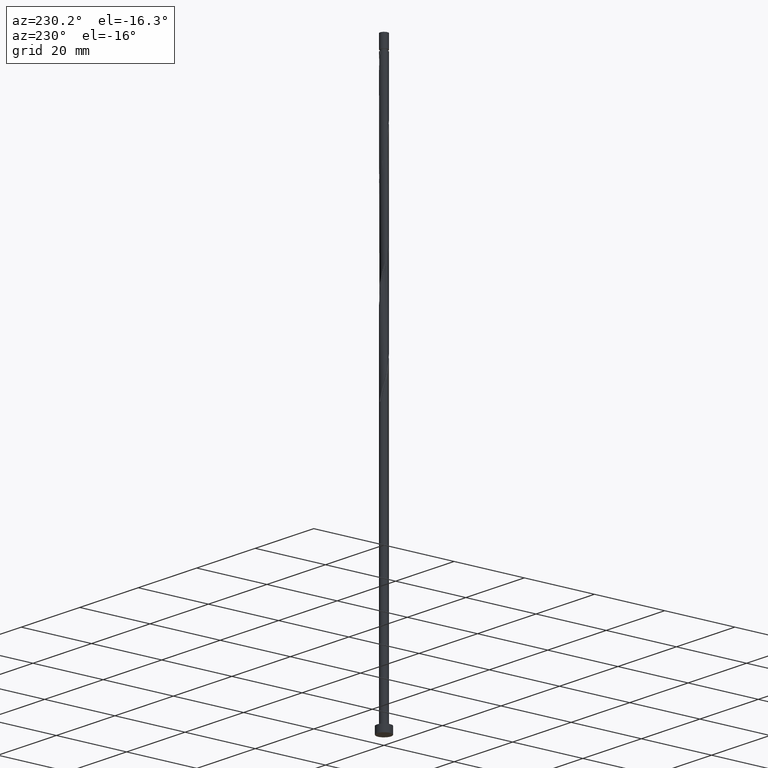
[diagram: clean part render]
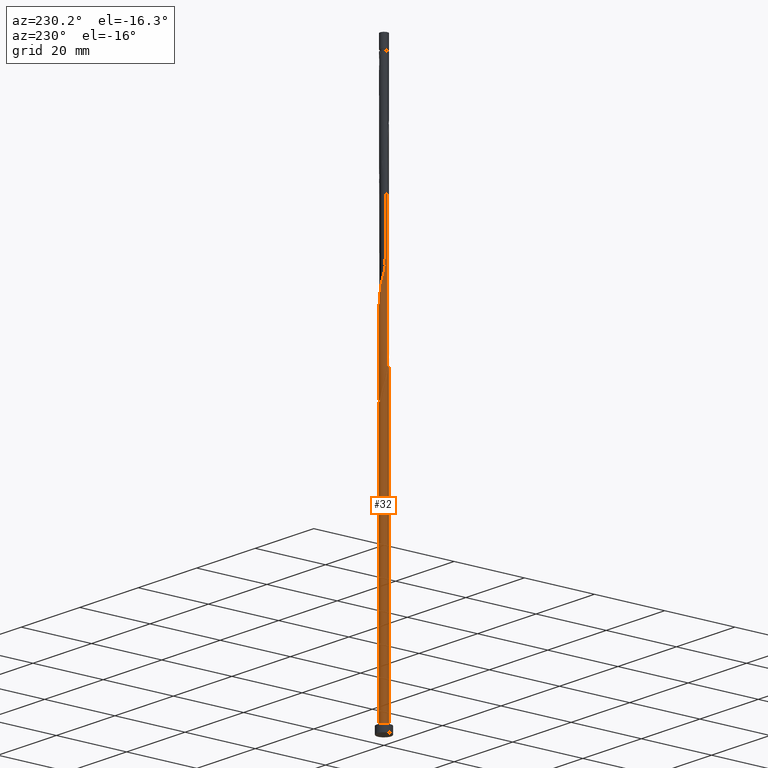
[diagram: same view with one face highlighted and labeled with its STEP entity id]
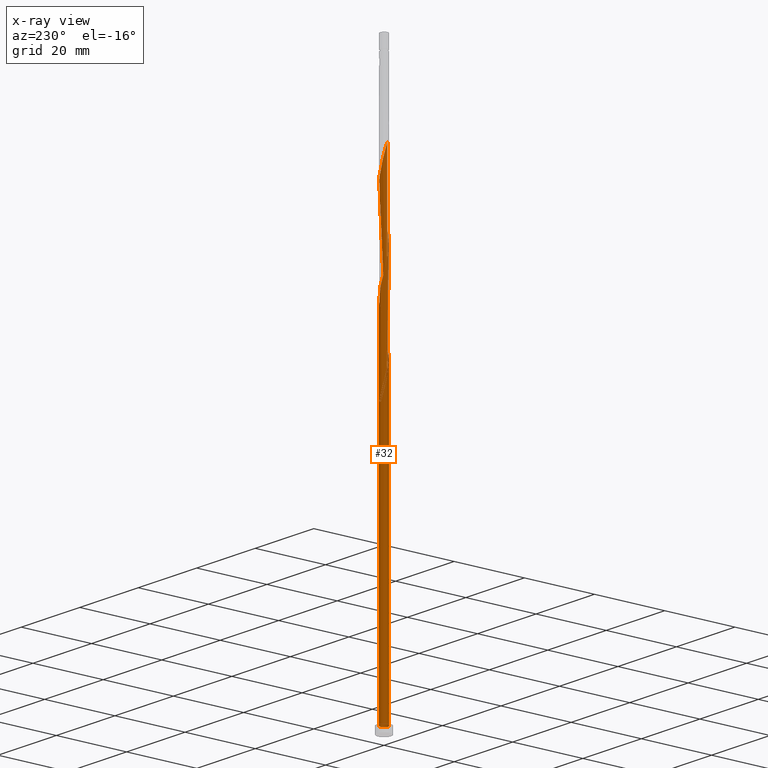
[diagram: x-ray of the same camera — body ghosted, the highlighted face saturated]
A machine part, auxiliary view. The second image highlights one B-rep face of the part: STEP entity #32.
The next image is the same camera in x-ray: the body ghosted, the highlighted face saturated — about 0% of this face is hidden behind the body in this view.
In plain terms, the highlighted cylindrical surface (bore or boss wall) has radius 1.1 mm, axis along (-0, -0, -1).
Its self-contained STEP definition (entity closure, byte-faithful):
#13 = CARTESIAN_POINT ( 'NONE',  ( -0.8896500927852528662, -0.6469333137249893007, 84.27807455420632721 ) ) ;
#27 = CARTESIAN_POINT ( 'NONE',  ( 0.7669588744666251401, -0.7885265276938321355, 118.2174684936002791 ) ) ;
#32 = ADVANCED_FACE ( 'NONE', ( #833 ), #443, .T. ) ;
#35 = CARTESIAN_POINT ( 'NONE',  ( -1.107274360013432490, 0.09464064150255063756, 107.9144381905699532 ) ) ;
#39 = EDGE_CURVE ( 'NONE', #769, #81, #824, .T. ) ;
#44 = CARTESIAN_POINT ( 'NONE',  ( -1.098179839110718259, -0.06325378226446287666, 108.5204987966305765 ) ) ;
#51 = CARTESIAN_POINT ( 'NONE',  ( 0.8803318733882241620, -0.6782544891587158897, 92.15686243299418834 ) ) ;
#57 = CARTESIAN_POINT ( 'NONE',  ( 0.5137380563175319992, -0.9726629475265770042, 90.33868061481238954 ) ) ;
#77 = EDGE_CURVE ( 'NONE', #81, #672, #650, .T. ) ;
#81 = VERTEX_POINT ( 'NONE', #338 ) ;
#86 =( BOUNDED_CURVE ( )  B_SPLINE_CURVE ( 2, ( #370, #952, #1429, #844, #1306, #1082, #13, #972, #256, #734, #1459, #411, #522, #1479, #1012, #1106, #57, #878, #415, #51, #986, #299, #164, #158, #635, #528, #508, #999, #1451, #865, #1331, #890, #1112, #873, #1221, #630, #1355, #292, #772, #767, #753, #1238, #1245, #885, #1226, #35, #44, #393, #1349, #400, #1343, #272, #624, #514, #1465, #176, #404, #1099, #748, #646, #995, #1336, #27, #279, #284, #760, #1231, #172, #534, #641, #1120, #1005, #1125, #1473, #1136, #1018, #662, #367, #193, #201, #794, #1294, #1129, #669, #901, #1362, #1426, #776, #545, #956, #124 ),
 .UNSPECIFIED., .F., .T. ) 
 B_SPLINE_CURVE_WITH_KNOTS ( ( 3, 2, 2, 2, 2, 2, 2, 2, 2, 2, 2, 2, 2, 2, 2, 2, 2, 2, 2, 2, 2, 2, 2, 2, 2, 2, 2, 2, 2, 2, 2, 2, 2, 2, 2, 2, 2, 2, 2, 2, 2, 2, 2, 2, 2, 3 ),
 ( 0.05452521624175153681, 0.05681818181818176772, 0.06818181818181823228, 0.07954545454545458583, 0.09090909090909093937, 0.1022727272727272929, 0.1136363636363636465, 0.1250000000000000000, 0.1363636363636363535, 0.1477272727272727071, 0.1590909090909090606, 0.1704545454545454142, 0.1818181818181817677, 0.1931818181818182323, 0.2045454545454545858, 0.2159090909090909394, 0.2272727272727272929, 0.2386363636363636465, 0.2500000000000000000, 0.2613636363636363535, 0.2727272727272727071, 0.2840909090909090606, 0.2954545454545454142, 0.3068181818181817677, 0.3181818181818182323, 0.3295454545454545858, 0.3409090909090909394, 0.3522727272727272929, 0.3636363636363636465, 0.3750000000000000000, 0.3863636363636363535, 0.3977272727272727071, 0.4090909090909090606, 0.4204545454545454142, 0.4318181818181817677, 0.4431818181818182323, 0.4545454545454545858, 0.4659090909090909394, 0.4772727272727272929, 0.4886363636363636465, 0.5000000000000000000, 0.5113636363636363535, 0.5227272727272727071, 0.5340909090909091717, 0.5454545454545454142, 0.5545252162417509956 ),
 .UNSPECIFIED. ) 
 CURVE ( )  GEOMETRIC_REPRESENTATION_ITEM ( )  RATIONAL_B_SPLINE_CURVE ( ( 0.9061101570135821071, 0.9072237824201642153, 0.9090909090909415902, 0.8998376744372437175, 0.9090909090909415902, 0.8998376744372437175, 0.9090909090909415902, 0.8998376744372437175, 0.9090909090909415902, 0.8998376744372437175, 0.9090909090909415902, 0.8998376744372437175, 0.9090909090909415902, 0.8998376744372437175, 0.9090909090909415902, 0.8998376744372437175, 0.9090909090909415902, 0.8998376744372437175, 0.9090909090909415902, 0.8998376744372437175, 0.9090909090909415902, 0.8998376744372437175, 0.9090909090909415902, 0.8998376744372437175, 0.9090909090909415902, 0.8998376744372437175, 0.9090909090909415902, 0.8998376744372437175, 0.9090909090909415902, 0.8998376744372437175, 0.9090909090909415902, 0.8998376744372437175, 0.9090909090909415902, 0.8998376744372437175, 0.9090909090909415902, 0.8998376744372437175, 0.9090909090909415902, 0.8998376744372437175, 0.9090909090909415902, 0.8998376744372437175, 0.9090909090909415902, 0.8998376744372437175, 0.9090909090909415902, 0.8998376744372437175, 0.9090909090909415902, 0.8998376744372437175, 0.9090909090909415902, 0.8998376744372437175, 0.9090909090909415902, 0.8998376744372437175, 0.9090909090909415902, 0.8998376744372437175, 0.9090909090909415902, 0.8998376744372437175, 0.9090909090909415902, 0.8998376744372437175, 0.9090909090909415902, 0.8998376744372437175, 0.9090909090909415902, 0.8998376744372437175, 0.9090909090909415902, 0.8998376744372437175, 0.9090909090909415902, 0.8998376744372437175, 0.9090909090909415902, 0.8998376744372437175, 0.9090909090909415902, 0.8998376744372437175, 0.9090909090909415902, 0.8998376744372437175, 0.9090909090909415902, 0.8998376744372437175, 0.9090909090909415902, 0.8998376744372437175, 0.9090909090909415902, 0.8998376744372437175, 0.9090909090909415902, 0.8998376744372437175, 0.9090909090909415902, 0.8998376744372437175, 0.9090909090909415902, 0.8998376744372437175, 0.9090909090909415902, 0.8998376744372437175, 0.9090909090909415902, 0.8998376744372437175, 0.9090909090909415902, 0.8998376744372437175, 0.9090909090909415902, 0.9017048011080215364, 0.9061101570135814409 ) ) 
 REPRESENTATION_ITEM ( '' )  );
#100 = DIRECTION ( 'NONE',  ( 0.000000000000000000, 0.000000000000000000, 1.000000000000000000 ) ) ;
#103 = CARTESIAN_POINT ( 'NONE',  ( -0.8803318733882241620, 0.6782544891587156677, 78.82352909966088816 ) ) ;
#111 = EDGE_CURVE ( 'NONE', #735, #769, #1368, .T. ) ;
#115 = CARTESIAN_POINT ( 'NONE',  ( -0.5137380563175322212, 0.9726629475265764491, 77.00534728147904673 ) ) ;
#123 = VECTOR ( 'NONE', #1207, 1000.000000000000000 ) ;
#124 = CARTESIAN_POINT ( 'NONE',  ( -1.100000000000001199, 1.084369501003464350E-16, 134.9437715900569401 ) ) ;
#128 = CARTESIAN_POINT ( 'NONE',  ( -1.100000000000001199, 0.03165307917620435729, 83.18724921060717747 ) ) ;
#144 = CARTESIAN_POINT ( 'NONE',  ( -1.100000000000001199, -1.488203659997859560E-15, 83.30934721532540266 ) ) ;
#149 = AXIS2_PLACEMENT_3D ( 'NONE', #1006, #1356, #647 ) ;
#158 = CARTESIAN_POINT ( 'NONE',  ( 1.107274360013432490, -0.09464064150255058205, 94.58110485723662464 ) ) ;
#164 = CARTESIAN_POINT ( 'NONE',  ( 1.071516489199092259, -0.2487014543070791284, 93.97504425117602977 ) ) ;
#172 = CARTESIAN_POINT ( 'NONE',  ( 1.107274360013432490, -0.09464064150255058205, 121.2477715239032818 ) ) ;
#176 = CARTESIAN_POINT ( 'NONE',  ( -0.2512589077020578876, -1.082535135996767650, 113.9750442511760014 ) ) ;
#193 = CARTESIAN_POINT ( 'NONE',  ( 0.09367733623259111297, 1.096003903586282746, 127.9144381905699674 ) ) ;
#201 = CARTESIAN_POINT ( 'NONE',  ( -0.06390423523687575880, 1.109472671175798286, 128.5204987966305623 ) ) ;
#204 = DIRECTION ( 'NONE',  ( 1.000000000000000000, 0.000000000000000000, 0.000000000000000000 ) ) ;
#209 = CARTESIAN_POINT ( 'NONE',  ( 0.000000000000000000, 0.000000000000000000, 2.000000000000000000 ) ) ;
#223 = CARTESIAN_POINT ( 'NONE',  ( -0.2188972361634571318, 1.078000000000001402, 75.79322606935782858 ) ) ;
#236 = ORIENTED_EDGE ( 'NONE', *, *, #1183, .T. ) ;
#238 = CARTESIAN_POINT ( 'NONE',  ( -0.5460665482332321963, 0.9678970421836270432, 78.82352909966088816 ) ) ;
#256 = CARTESIAN_POINT ( 'NONE',  ( -0.6713508364212954493, -0.8713713642508746915, 85.49019576632754536 ) ) ;
#261 =( BOUNDED_CURVE ( )  B_SPLINE_CURVE ( 2, ( #144, #128, #1068, #1411, #266, #500, #352, #978, #1289, #238, #720, #708, #485, #363, #1214 ),
 .UNSPECIFIED., .F., .T. ) 
 B_SPLINE_CURVE_WITH_KNOTS ( ( 3, 2, 2, 2, 2, 2, 2, 3 ),
 ( 0.9295252162417512176, 0.9318181818181817677, 0.9431818181818182323, 0.9545454545454545858, 0.9659090909090909394, 0.9772727272727272929, 0.9886363636363636465, 1.000000000000000000 ),
 .UNSPECIFIED. ) 
 CURVE ( )  GEOMETRIC_REPRESENTATION_ITEM ( )  RATIONAL_B_SPLINE_CURVE ( ( 0.9061101570135807748, 0.9072237824201629941, 0.9090909090909405910, 0.8998376744372426073, 0.9090909090909405910, 0.8998376744372426073, 0.9090909090909405910, 0.8998376744372426073, 0.9090909090909405910, 0.8998376744372426073, 0.9090909090909405910, 0.8998376744372426073, 0.9090909090909405910, 0.8998376744372426073, 0.9090909090909405910 ) ) 
 REPRESENTATION_ITEM ( '' )  );
#266 = CARTESIAN_POINT ( 'NONE',  ( -1.035875189584575473, 0.3700845735816659654, 81.85383212996390512 ) ) ;
#272 = CARTESIAN_POINT ( 'NONE',  ( -0.7966351246093585914, -0.7748456863181226728, 111.5508018269336077 ) ) ;
#279 = CARTESIAN_POINT ( 'NONE',  ( 0.8803318733882241620, -0.6782544891587158897, 118.8235290996608597 ) ) ;
#284 = CARTESIAN_POINT ( 'NONE',  ( 0.9580452458864877618, -0.5405083781351618377, 119.4295897057214972 ) ) ;
#292 = CARTESIAN_POINT ( 'NONE',  ( -0.3738902370900389904, 1.046527328824204739, 103.0659533420850948 ) ) ;
#299 = CARTESIAN_POINT ( 'NONE',  ( 1.035758618384751584, -0.4027622671116076747, 93.36898364511540649 ) ) ;
#324 = DIRECTION ( 'NONE',  ( -1.000000000000000000, 0.000000000000000000, 0.000000000000000000 ) ) ;
#332 = CARTESIAN_POINT ( 'NONE',  ( -1.100000000000000089, 0.000000000000000000, 160.0000000000000000 ) ) ;
#338 = CARTESIAN_POINT ( 'NONE',  ( -1.100000000000000089, 0.000000000000000000, 2.000000000000000000 ) ) ;
#352 = CARTESIAN_POINT ( 'NONE',  ( -0.8896500927852523111, 0.6469333137249889676, 80.64171091784265855 ) ) ;
#363 = CARTESIAN_POINT ( 'NONE',  ( 0.06390423523687595309, 1.109472671175797842, 76.39928667541842344 ) ) ;
#367 = CARTESIAN_POINT ( 'NONE',  ( 0.2512589077020579986, 1.082535135996767650, 127.3083775845093584 ) ) ;
#370 = CARTESIAN_POINT ( 'NONE',  ( -1.100000000000001643, -1.428376377183873864E-15, 81.61043825672363994 ) ) ;
#375 = CARTESIAN_POINT ( 'NONE',  ( -1.100000000000001643, -1.428376377183873864E-15, 81.61043825672363994 ) ) ;
#393 = CARTESIAN_POINT ( 'NONE',  ( -1.089085318208004916, -0.2211482060314761966, 109.1265594026911998 ) ) ;
#400 = CARTESIAN_POINT ( 'NONE',  ( -0.9826650609611463638, -0.5190209411318559285, 110.3386806148123895 ) ) ;
#404 = CARTESIAN_POINT ( 'NONE',  ( -0.09367733623259101583, -1.096003903586282746, 114.5811048572366246 ) ) ;
#411 = CARTESIAN_POINT ( 'NONE',  ( -0.2512589077020578876, -1.082535135996767650, 87.30837758450932995 ) ) ;
#415 = CARTESIAN_POINT ( 'NONE',  ( 0.7669588744666251401, -0.7885265276938321355, 91.55080182693357926 ) ) ;
#417 = VERTEX_POINT ( 'NONE', #450 ) ;
#433 = AXIS2_PLACEMENT_3D ( 'NONE', #455, #100, #204 ) ;
#438 = CARTESIAN_POINT ( 'NONE',  ( -1.100000000000001643, -1.428376377183873864E-15, 81.61043825672363994 ) ) ;
#443 = CYLINDRICAL_SURFACE ( 'NONE', #984, 1.100000000000000089 ) ;
#450 = CARTESIAN_POINT ( 'NONE',  ( -1.100000000000001199, -1.488203659997859560E-15, 83.30934721532540266 ) ) ;
#455 = CARTESIAN_POINT ( 'NONE',  ( 0.000000000000000000, 0.000000000000000000, 2.000000000000000000 ) ) ;
#462 = DIRECTION ( 'NONE',  ( 0.000000000000000000, 0.000000000000000000, 1.000000000000000000 ) ) ;
#485 = CARTESIAN_POINT ( 'NONE',  ( -0.09367733623259097420, 1.096003903586282524, 77.00534728147904673 ) ) ;
#489 = CARTESIAN_POINT ( 'NONE',  ( -0.6535858755450258961, 0.8987985662289482702, 77.61140788753965580 ) ) ;
#500 = CARTESIAN_POINT ( 'NONE',  ( -0.9826650609611464748, 0.5190209411318560395, 81.24777152390332446 ) ) ;
#508 = CARTESIAN_POINT ( 'NONE',  ( 1.035875189584575695, 0.3700845735816657989, 96.39928667541845186 ) ) ;
#514 = CARTESIAN_POINT ( 'NONE',  ( -0.5460665482332324183, -0.9678970421836270432, 112.7629230390547832 ) ) ;
#522 = CARTESIAN_POINT ( 'NONE',  ( -0.09367733623259101583, -1.096003903586282746, 87.91443819056996745 ) ) ;
#528 = CARTESIAN_POINT ( 'NONE',  ( 1.089085318208004916, 0.2211482060314760301, 95.79322606935787121 ) ) ;
#534 = CARTESIAN_POINT ( 'NONE',  ( 1.098179839110718481, 0.06325378226446277952, 121.8538321299638909 ) ) ;
#537 = CARTESIAN_POINT ( 'NONE',  ( -1.100000000000001199, 1.084369501003464350E-16, 134.9437715900569401 ) ) ;
#545 = CARTESIAN_POINT ( 'NONE',  ( -1.071516489199092037, 0.2487014543070791839, 133.9750442511760014 ) ) ;
#575 = CARTESIAN_POINT ( 'NONE',  ( -0.9580452458864878729, 0.5405083781351618377, 79.42958970572146882 ) ) ;
#584 = EDGE_CURVE ( 'NONE', #735, #892, #1405, .T. ) ;
#617 = ORIENTED_EDGE ( 'NONE', *, *, #1300, .F. ) ;
#624 = CARTESIAN_POINT ( 'NONE',  ( -0.6713508364212954493, -0.8713713642508746915, 112.1568624329942025 ) ) ;
#630 = CARTESIAN_POINT ( 'NONE',  ( -0.06390423523687575880, 1.109472671175798286, 101.8538321299638909 ) ) ;
#635 = CARTESIAN_POINT ( 'NONE',  ( 1.098179839110718481, 0.06325378226446277952, 95.18716546329721950 ) ) ;
#641 = CARTESIAN_POINT ( 'NONE',  ( 1.089085318208004916, 0.2211482060314760301, 122.4598927360245142 ) ) ;
#646 = CARTESIAN_POINT ( 'NONE',  ( 0.3738902370900387129, -1.046527328824204961, 116.3992866754184377 ) ) ;
#647 = DIRECTION ( 'NONE',  ( -1.000000000000000000, 0.000000000000000000, 0.000000000000000000 ) ) ;
#649 = ORIENTED_EDGE ( 'NONE', *, *, #584, .T. ) ;
#650 = CIRCLE ( 'NONE', #1246, 1.100000000000000089 ) ;
#662 = CARTESIAN_POINT ( 'NONE',  ( 0.3986627279676449032, 1.025216089090197347, 126.7023169784487777 ) ) ;
#669 = CARTESIAN_POINT ( 'NONE',  ( -0.6535858755450258961, 0.8987985662289482702, 130.9447412208729986 ) ) ;
#672 = VERTEX_POINT ( 'NONE', #1108 ) ;
#688 = DIRECTION ( 'NONE',  ( 1.000000000000000000, 0.000000000000000000, 0.000000000000000000 ) ) ;
#703 = CARTESIAN_POINT ( 'NONE',  ( -0.3738902370900389904, 1.046527328824204739, 76.39928667541843765 ) ) ;
#708 = CARTESIAN_POINT ( 'NONE',  ( -0.2512589077020578321, 1.082535135996767206, 77.61140788753964159 ) ) ;
#720 = CARTESIAN_POINT ( 'NONE',  ( -0.3986627279676447921, 1.025216089090196903, 78.21746849360026488 ) ) ;
#734 = CARTESIAN_POINT ( 'NONE',  ( -0.5460665482332324183, -0.9678970421836270432, 86.09625637238816864 ) ) ;
#735 = VERTEX_POINT ( 'NONE', #1424 ) ;
#748 = CARTESIAN_POINT ( 'NONE',  ( 0.2188972361634572983, -1.078000000000001624, 115.7932260693578428 ) ) ;
#753 = CARTESIAN_POINT ( 'NONE',  ( -0.7669588744666251401, 0.7885265276938321355, 104.8841351602669505 ) ) ;
#760 = CARTESIAN_POINT ( 'NONE',  ( 1.035758618384751584, -0.4027622671116076747, 120.0356503117820921 ) ) ;
#767 = CARTESIAN_POINT ( 'NONE',  ( -0.6535858755450258961, 0.8987985662289482702, 104.2780745542063130 ) ) ;
#769 = VERTEX_POINT ( 'NONE', #375 ) ;
#772 = CARTESIAN_POINT ( 'NONE',  ( -0.5137380563175322212, 0.9726629475265764491, 103.6720139481457323 ) ) ;
#776 = CARTESIAN_POINT ( 'NONE',  ( -1.035758618384751584, 0.4027622671116080633, 133.3689836451154349 ) ) ;
#794 = CARTESIAN_POINT ( 'NONE',  ( -0.2188972361634571873, 1.078000000000001624, 129.1265594026911856 ) ) ;
#798 = DIRECTION ( 'NONE',  ( -0.000000000000000000, -0.000000000000000000, -1.000000000000000000 ) ) ;
#824 = LINE ( 'NONE', #332, #1055 ) ;
#833 = FACE_OUTER_BOUND ( 'NONE', #1146, .T. ) ;
#844 = CARTESIAN_POINT ( 'NONE',  ( -1.089085318208004916, -0.2211482060314761966, 82.45989273602447156 ) ) ;
#865 = CARTESIAN_POINT ( 'NONE',  ( 0.7966351246093590355, 0.7748456863181222287, 98.21746849360027909 ) ) ;
#873 = CARTESIAN_POINT ( 'NONE',  ( 0.2512589077020579986, 1.082535135996767650, 100.6417109178427154 ) ) ;
#878 = CARTESIAN_POINT ( 'NONE',  ( 0.6535858755450258961, -0.8987985662289482702, 90.94474122087301282 ) ) ;
#885 = CARTESIAN_POINT ( 'NONE',  ( -1.035758618384751584, 0.4027622671116080633, 106.7023169784487635 ) ) ;
#890 = CARTESIAN_POINT ( 'NONE',  ( 0.5460665482332320853, 0.9678970421836273763, 99.42958970572145461 ) ) ;
#892 = VERTEX_POINT ( 'NONE', #1094 ) ;
#901 = CARTESIAN_POINT ( 'NONE',  ( -0.7669588744666251401, 0.7885265276938321355, 131.5508018269336503 ) ) ;
#912 = CARTESIAN_POINT ( 'NONE',  ( 0.000000000000000000, 0.000000000000000000, 160.0000000000000000 ) ) ;
#937 = CARTESIAN_POINT ( 'NONE',  ( -1.035758618384751584, 0.4027622671116080633, 80.03565031178209210 ) ) ;
#952 = CARTESIAN_POINT ( 'NONE',  ( -1.100000000000001421, -0.03165307917620861083, 81.73253626144185091 ) ) ;
#956 = CARTESIAN_POINT ( 'NONE',  ( -1.100000000000000533, 0.1259818201236400925, 134.4578116370856264 ) ) ;
#972 = CARTESIAN_POINT ( 'NONE',  ( -0.7966351246093585914, -0.7748456863181226728, 84.88413516026690786 ) ) ;
#978 = CARTESIAN_POINT ( 'NONE',  ( -0.7966351246093584804, 0.7748456863181226728, 80.03565031178209210 ) ) ;
#984 = AXIS2_PLACEMENT_3D ( 'NONE', #912, #1399, #324 ) ;
#986 = CARTESIAN_POINT ( 'NONE',  ( 0.9580452458864877618, -0.5405083781351618377, 92.76292303905484005 ) ) ;
#995 = CARTESIAN_POINT ( 'NONE',  ( 0.5137380563175319992, -0.9726629475265770042, 117.0053472814790325 ) ) ;
#999 = CARTESIAN_POINT ( 'NONE',  ( 0.9826650609611466969, 0.5190209411318554844, 97.00534728147904673 ) ) ;
#1005 = CARTESIAN_POINT ( 'NONE',  ( 0.9826650609611466969, 0.5190209411318554844, 123.6720139481457323 ) ) ;
#1006 = CARTESIAN_POINT ( 'NONE',  ( 0.000000000000000000, 0.000000000000000000, 75.79322606935784279 ) ) ;
#1012 = CARTESIAN_POINT ( 'NONE',  ( 0.2188972361634572983, -1.078000000000001624, 89.12655940269119981 ) ) ;
#1018 = CARTESIAN_POINT ( 'NONE',  ( 0.5460665482332320853, 0.9678970421836273763, 126.0962563723881402 ) ) ;
#1055 = VECTOR ( 'NONE', #798, 1000.000000000000000 ) ;
#1058 = ORIENTED_EDGE ( 'NONE', *, *, #1358, .F. ) ;
#1068 = CARTESIAN_POINT ( 'NONE',  ( -1.098179839110718037, 0.06325378226446302932, 83.06595334208510906 ) ) ;
#1082 = CARTESIAN_POINT ( 'NONE',  ( -0.9826650609611463638, -0.5190209411318559285, 83.67201394814571813 ) ) ;
#1094 = CARTESIAN_POINT ( 'NONE',  ( 0.2188972361634576869, 1.078000000000001402, 75.79322606935782858 ) ) ;
#1099 = CARTESIAN_POINT ( 'NONE',  ( 0.06390423523687592533, -1.109472671175798286, 115.1871654632972621 ) ) ;
#1100 = VERTEX_POINT ( 'NONE', #537 ) ;
#1106 = CARTESIAN_POINT ( 'NONE',  ( 0.3738902370900387129, -1.046527328824204961, 89.73262000875179467 ) ) ;
#1108 = CARTESIAN_POINT ( 'NONE',  ( 1.100000000000000089, 0.000000000000000000, 2.000000000000000000 ) ) ;
#1112 = CARTESIAN_POINT ( 'NONE',  ( 0.3986627279676449032, 1.025216089090197347, 100.0356503117821205 ) ) ;
#1120 = CARTESIAN_POINT ( 'NONE',  ( 1.035875189584575695, 0.3700845735816657989, 123.0659533420851233 ) ) ;
#1125 = CARTESIAN_POINT ( 'NONE',  ( 0.8896500927852528662, 0.6469333137249887455, 124.2780745542063272 ) ) ;
#1129 = CARTESIAN_POINT ( 'NONE',  ( -0.5137380563175322212, 0.9726629475265764491, 130.3386806148123753 ) ) ;
#1136 = CARTESIAN_POINT ( 'NONE',  ( 0.6713508364212954493, 0.8713713642508750246, 125.4901957663275311 ) ) ;
#1139 = ORIENTED_EDGE ( 'NONE', *, *, #39, .T. ) ;
#1146 = EDGE_LOOP ( 'NONE', ( #617, #1058, #1139, #1390, #236, #1179, #1233, #649, #1162 ) ) ;
#1160 = CIRCLE ( 'NONE', #433, 1.100000000000000089 ) ;
#1162 = ORIENTED_EDGE ( 'NONE', *, *, #1311, .F. ) ;
#1176 = CARTESIAN_POINT ( 'NONE',  ( -0.7669588744666251401, 0.7885265276938321355, 78.21746849360029330 ) ) ;
#1179 = ORIENTED_EDGE ( 'NONE', *, *, #39, .F. ) ;
#1183 = EDGE_CURVE ( 'NONE', #672, #81, #1160, .T. ) ;
#1192 = CARTESIAN_POINT ( 'NONE',  ( -1.100000000000000089, 0.000000000000000000, 160.0000000000000000 ) ) ;
#1207 = DIRECTION ( 'NONE',  ( -0.000000000000000000, -0.000000000000000000, -1.000000000000000000 ) ) ;
#1214 = CARTESIAN_POINT ( 'NONE',  ( 0.2188972361634576869, 1.078000000000001402, 75.79322606935782858 ) ) ;
#1221 = CARTESIAN_POINT ( 'NONE',  ( 0.09367733623259111297, 1.096003903586282746, 101.2477715239033103 ) ) ;
#1226 = CARTESIAN_POINT ( 'NONE',  ( -1.071516489199092037, 0.2487014543070791839, 107.3083775845093299 ) ) ;
#1231 = CARTESIAN_POINT ( 'NONE',  ( 1.071516489199092259, -0.2487014543070791284, 120.6417109178426870 ) ) ;
#1233 = ORIENTED_EDGE ( 'NONE', *, *, #111, .F. ) ;
#1238 = CARTESIAN_POINT ( 'NONE',  ( -0.8803318733882241620, 0.6782544891587156677, 105.4901957663275454 ) ) ;
#1245 = CARTESIAN_POINT ( 'NONE',  ( -0.9580452458864878729, 0.5405083781351618377, 106.0962563723881544 ) ) ;
#1246 = AXIS2_PLACEMENT_3D ( 'NONE', #209, #462, #688 ) ;
#1289 = CARTESIAN_POINT ( 'NONE',  ( -0.6713508364212953383, 0.8713713642508746915, 79.42958970572145461 ) ) ;
#1294 = CARTESIAN_POINT ( 'NONE',  ( -0.3738902370900389904, 1.046527328824204739, 129.7326200087518089 ) ) ;
#1300 = EDGE_CURVE ( 'NONE', #1100, #417, #1317, .T. ) ;
#1306 = CARTESIAN_POINT ( 'NONE',  ( -1.035875189584575695, -0.3700845735816660209, 83.06595334208513748 ) ) ;
#1311 = EDGE_CURVE ( 'NONE', #417, #892, #261, .T. ) ;
#1317 = LINE ( 'NONE', #1192, #123 ) ;
#1331 = CARTESIAN_POINT ( 'NONE',  ( 0.6713508364212954493, 0.8713713642508750246, 98.82352909966085974 ) ) ;
#1336 = CARTESIAN_POINT ( 'NONE',  ( 0.6535858755450258961, -0.8987985662289482702, 117.6114078875396558 ) ) ;
#1343 = CARTESIAN_POINT ( 'NONE',  ( -0.8896500927852528662, -0.6469333137249893007, 110.9447412208729702 ) ) ;
#1345 = CARTESIAN_POINT ( 'NONE',  ( -1.100000000000002531, 0.1259818201236314883, 81.12447830375234048 ) ) ;
#1349 = CARTESIAN_POINT ( 'NONE',  ( -1.035875189584575695, -0.3700845735816660209, 109.7326200087517805 ) ) ;
#1355 = CARTESIAN_POINT ( 'NONE',  ( -0.2188972361634571873, 1.078000000000001624, 102.4598927360245142 ) ) ;
#1356 = DIRECTION ( 'NONE',  ( 0.000000000000000000, -0.000000000000000000, -1.000000000000000000 ) ) ;
#1358 = EDGE_CURVE ( 'NONE', #769, #1100, #86, .T. ) ;
#1362 = CARTESIAN_POINT ( 'NONE',  ( -0.8803318733882241620, 0.6782544891587156677, 132.1568624329941883 ) ) ;
#1368 =( BOUNDED_CURVE ( )  B_SPLINE_CURVE ( 2, ( #223, #703, #115, #489, #1176, #103, #575, #937, #1406, #1345, #438 ),
 .UNSPECIFIED., .F., .T. ) 
 B_SPLINE_CURVE_WITH_KNOTS ( ( 3, 2, 2, 2, 2, 3 ),
 ( 0.000000000000000000, 0.01136363636363635354, 0.02272727272727270709, 0.03409090909090906063, 0.04545454545454541417, 0.05452521624175153681 ),
 .UNSPECIFIED. ) 
 CURVE ( )  GEOMETRIC_REPRESENTATION_ITEM ( )  RATIONAL_B_SPLINE_CURVE ( ( 0.9090909090909415902, 0.8998376744372437175, 0.9090909090909415902, 0.8998376744372437175, 0.9090909090909415902, 0.8998376744372437175, 0.9090909090909415902, 0.8998376744372437175, 0.9090909090909415902, 0.9017048011080210923, 0.9061101570135821071 ) ) 
 REPRESENTATION_ITEM ( '' )  );
#1390 = ORIENTED_EDGE ( 'NONE', *, *, #77, .T. ) ;
#1399 = DIRECTION ( 'NONE',  ( -0.000000000000000000, -0.000000000000000000, -1.000000000000000000 ) ) ;
#1405 = CIRCLE ( 'NONE', #149, 1.100000000000000089 ) ;
#1406 = CARTESIAN_POINT ( 'NONE',  ( -1.071516489199092037, 0.2487014543070791839, 80.64171091784268697 ) ) ;
#1411 = CARTESIAN_POINT ( 'NONE',  ( -1.089085318208004693, 0.2211482060314762799, 82.45989273602447156 ) ) ;
#1424 = CARTESIAN_POINT ( 'NONE',  ( -0.2188972361634571318, 1.078000000000001402, 75.79322606935782858 ) ) ;
#1426 = CARTESIAN_POINT ( 'NONE',  ( -0.9580452458864878729, 0.5405083781351618377, 132.7629230390547832 ) ) ;
#1429 = CARTESIAN_POINT ( 'NONE',  ( -1.098179839110718259, -0.06325378226446287666, 81.85383212996391933 ) ) ;
#1451 = CARTESIAN_POINT ( 'NONE',  ( 0.8896500927852528662, 0.6469333137249887455, 97.61140788753967001 ) ) ;
#1459 = CARTESIAN_POINT ( 'NONE',  ( -0.3986627279676454028, -1.025216089090197347, 86.70231697844876351 ) ) ;
#1465 = CARTESIAN_POINT ( 'NONE',  ( -0.3986627279676454028, -1.025216089090197347, 113.3689836451154207 ) ) ;
#1473 = CARTESIAN_POINT ( 'NONE',  ( 0.7966351246093590355, 0.7748456863181222287, 124.8841351602669505 ) ) ;
#1479 = CARTESIAN_POINT ( 'NONE',  ( 0.06390423523687592533, -1.109472671175798286, 88.52049879663056231 ) ) ;